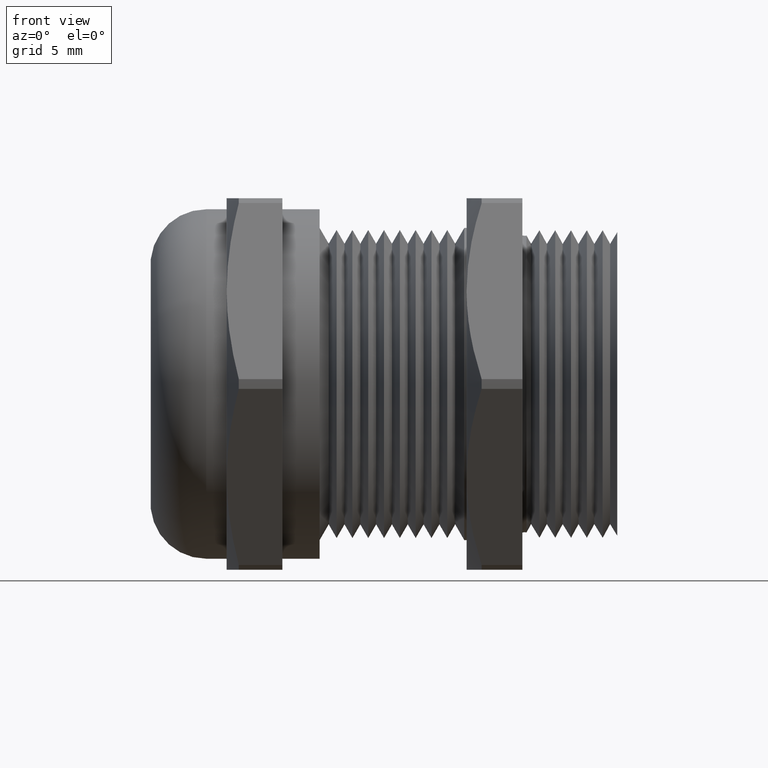
[diagram: clean part render]
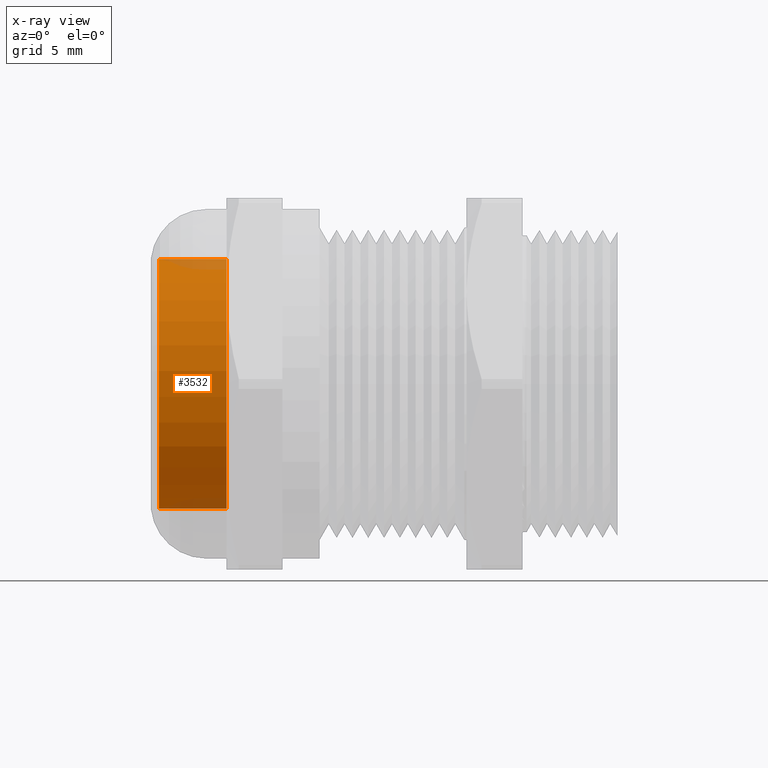
[diagram: x-ray — body ghosted, one internal face saturated and labeled with its STEP entity id]
A machine part, front view, then the same camera in x-ray: the body is ghosted and one INTERNAL B-rep face — a face not visible from any outside direction — is saturated and labeled: STEP entity #3532.
In plain terms, the highlighted cylindrical surface (partial cylindrical patch) has radius 8.0264 mm, axis along (-1, 0, 0).
Its self-contained STEP definition (entity closure, byte-faithful):
#3152 = DIRECTION ( 'NONE',  ( 0.0000000000000000000, 0.0000000000000000000, 1.000000000000000000 ) ) ;
#3153 = DIRECTION ( 'NONE',  ( -1.000000000000000000, 0.0000000000000000000, 0.0000000000000000000 ) ) ;
#3154 = CARTESIAN_POINT ( 'NONE',  ( -2.719493435091831800, 0.0000000000000000000, 0.0000000000000000000 ) ) ;
#3155 = AXIS2_PLACEMENT_3D ( 'NONE', #3154, #3153, #3152 ) ;
#3156 = CYLINDRICAL_SURFACE ( 'NONE', #3155, 0.3160000000000000000 ) ;
#3158 = FACE_OUTER_BOUND ( 'NONE', #3533, .T. ) ;
#3234 = DIRECTION ( 'NONE',  ( 0.0000000000000000000, 0.0000000000000000000, 1.000000000000000000 ) ) ;
#3235 = DIRECTION ( 'NONE',  ( -1.000000000000000000, 0.0000000000000000000, 0.0000000000000000000 ) ) ;
#3236 = CARTESIAN_POINT ( 'NONE',  ( -0.3979999999999999600, 0.0000000000000000000, 0.0000000000000000000 ) ) ;
#3237 = AXIS2_PLACEMENT_3D ( 'NONE', #3236, #3235, #3234 ) ;
#3238 = CIRCLE ( 'NONE', #3237, 0.3160000000000000600 ) ;
#3277 = DIRECTION ( 'NONE',  ( 0.0000000000000000000, 0.0000000000000000000, 1.000000000000000000 ) ) ;
#3278 = DIRECTION ( 'NONE',  ( -1.000000000000000000, 0.0000000000000000000, 0.0000000000000000000 ) ) ;
#3279 = CARTESIAN_POINT ( 'NONE',  ( -0.5699999999999999500, 0.0000000000000000000, 0.0000000000000000000 ) ) ;
#3280 = AXIS2_PLACEMENT_3D ( 'NONE', #3279, #3278, #3277 ) ;
#3281 = CIRCLE ( 'NONE', #3280, 0.3160000000000000000 ) ;
#3314 = DIRECTION ( 'NONE',  ( -1.000000000000000000, 0.0000000000000000000, 0.0000000000000000000 ) ) ;
#3315 = VECTOR ( 'NONE', #3314, 39.37007874015748100 ) ;
#3316 = CARTESIAN_POINT ( 'NONE',  ( -2.719493435091831800, 0.0000000000000000000, 0.3160000000000000000 ) ) ;
#3317 = LINE ( 'NONE', #3316, #3315 ) ;
#3319 = DIRECTION ( 'NONE',  ( -1.000000000000000000, 0.0000000000000000000, 0.0000000000000000000 ) ) ;
#3320 = VECTOR ( 'NONE', #3319, 39.37007874015748100 ) ;
#3321 = CARTESIAN_POINT ( 'NONE',  ( -2.719493435091831800, 3.869883885305636200E-017, -0.3160000000000000000 ) ) ;
#3322 = LINE ( 'NONE', #3321, #3320 ) ;
#3323 = CARTESIAN_POINT ( 'NONE',  ( -0.5699999999999999500, 0.0000000000000000000, 0.3160000000000000000 ) ) ;
#3346 = CARTESIAN_POINT ( 'NONE',  ( -0.3979999999999999600, 3.869883885305636800E-017, -0.3160000000000000600 ) ) ;
#3352 = CARTESIAN_POINT ( 'NONE',  ( -0.3979999999999999600, 0.0000000000000000000, 0.3160000000000000600 ) ) ;
#3370 = CARTESIAN_POINT ( 'NONE',  ( -0.5699999999999999500, 3.869883885305636200E-017, -0.3160000000000000000 ) ) ;
#3521 = ORIENTED_EDGE ( 'NONE', *, *, #3554, .T. ) ;
#3530 = ORIENTED_EDGE ( 'NONE', *, *, #3603, .F. ) ;
#3532 = ADVANCED_FACE ( 'NONE', ( #3158 ), #3156, .T. ) ;
#3533 = EDGE_LOOP ( 'NONE', ( #3530, #3521, #3591, #3590 ) ) ;
#3554 = EDGE_CURVE ( 'NONE', #3624, #3622, #3238, .T. ) ;
#3588 = EDGE_CURVE ( 'NONE', #3610, #3599, #3281, .T. ) ;
#3590 = ORIENTED_EDGE ( 'NONE', *, *, #3588, .F. ) ;
#3591 = ORIENTED_EDGE ( 'NONE', *, *, #3606, .T. ) ;
#3599 = VERTEX_POINT ( 'NONE', #3323 ) ;
#3603 = EDGE_CURVE ( 'NONE', #3624, #3610, #3322, .T. ) ;
#3606 = EDGE_CURVE ( 'NONE', #3622, #3599, #3317, .T. ) ;
#3610 = VERTEX_POINT ( 'NONE', #3370 ) ;
#3622 = VERTEX_POINT ( 'NONE', #3352 ) ;
#3624 = VERTEX_POINT ( 'NONE', #3346 ) ;